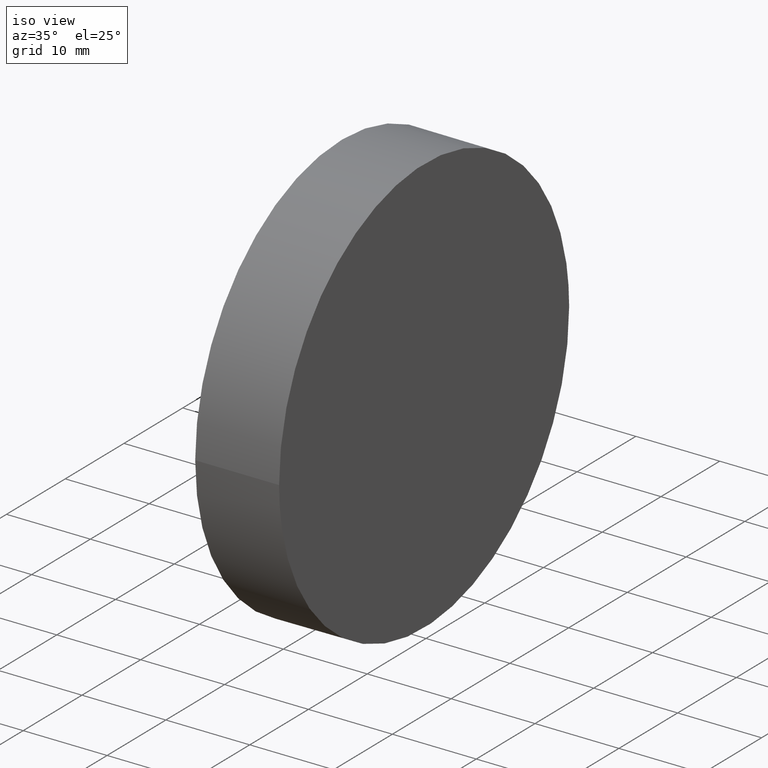
[diagram: clean part render]
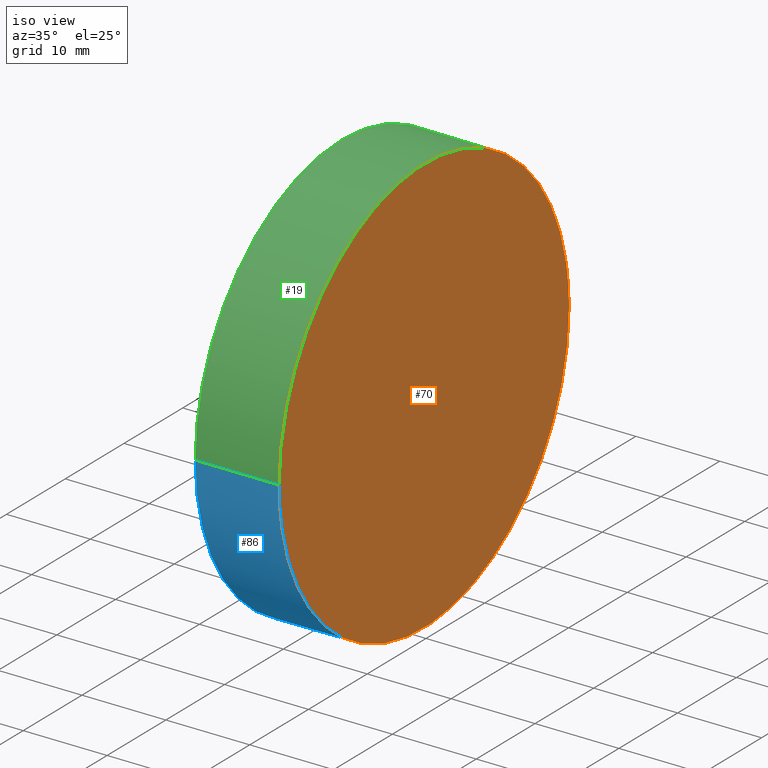
[diagram: same view with three faces highlighted in distinct colors, each labeled with its STEP entity id]
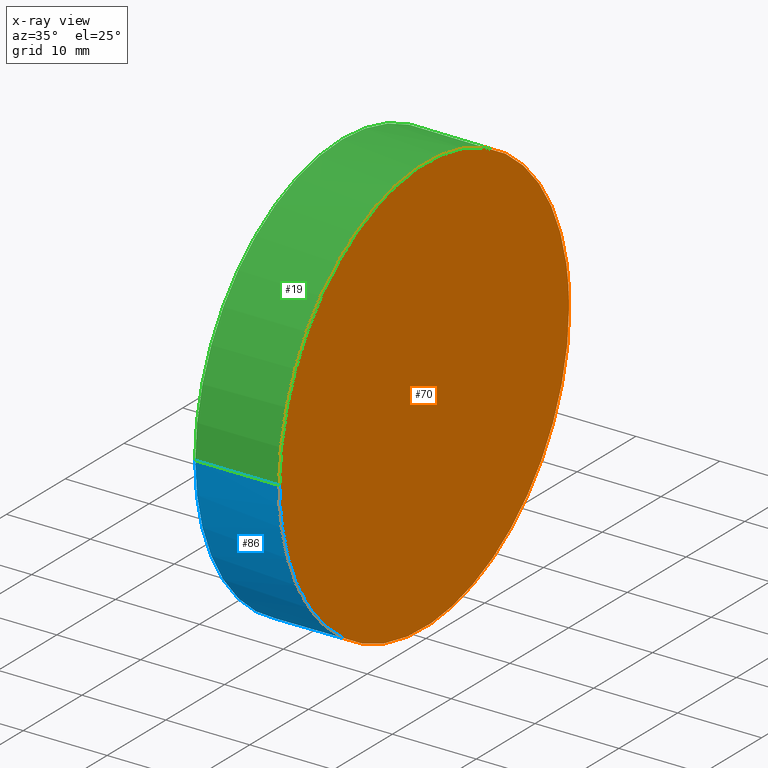
[diagram: x-ray of the same camera — body ghosted, the three highlighted faces saturated]
A machine part, iso view with three faces highlighted in distinct colors.
The next image is the same camera in x-ray (body ghosted, the three faces saturated) — at least one of them is partly hidden behind the body in this view.
Their STEP definitions:

[orange] entity #70 — the highlighted planar face has unit normal (-1, -0.0087, 0).
#4 = ORIENTED_EDGE ( 'NONE', *, *, #97, .F. ) ;
#17 = CARTESIAN_POINT ( 'NONE',  ( 10.00000000000000500, -25.00000000000000000, 25.00000000000000000 ) ) ;
#40 = CARTESIAN_POINT ( 'NONE',  ( 9.563656610462413000, 25.00000000000000000, 25.00000000000000400 ) ) ;
#46 = CARTESIAN_POINT ( 'NONE',  ( 10.00000000000000500, -25.00000000000000000, 25.00000000000000000 ) ) ;
#51 =( BOUNDED_CURVE ( )  B_SPLINE_CURVE ( 3, ( #46, #57, #122, #40 ),
 .UNSPECIFIED., .F., .T. ) 
 B_SPLINE_CURVE_WITH_KNOTS ( ( 4, 4 ),
 ( 3.141592653589793100, 6.283185307179586200 ),
 .UNSPECIFIED. ) 
 CURVE ( )  GEOMETRIC_REPRESENTATION_ITEM ( )  RATIONAL_B_SPLINE_CURVE ( ( 1.000000000000000000, 0.3333333333333333700, 0.3333333333333333700, 1.000000000000000000 ) ) 
 REPRESENTATION_ITEM ( '' )  );
#57 = CARTESIAN_POINT ( 'NONE',  ( 10.00000000000000500, -25.00000000000001100, 75.00000000000000000 ) ) ;
#69 = PLANE ( 'NONE',  #106 ) ;
#70 = ADVANCED_FACE ( 'NONE', ( #71 ), #69, .F. ) ;
#71 = FACE_OUTER_BOUND ( 'NONE', #118, .T. ) ;
#84 = CARTESIAN_POINT ( 'NONE',  ( 10.00000000000000500, -25.00000000000000400, 50.00000000000000000 ) ) ;
#87 = CARTESIAN_POINT ( 'NONE',  ( 9.563656610462413000, 25.00000000000000000, 25.00000000000000400 ) ) ;
#91 = CARTESIAN_POINT ( 'NONE',  ( 10.00000000000000500, -25.00000000000000000, -25.00000000000001100 ) ) ;
#94 = CARTESIAN_POINT ( 'NONE',  ( 9.563656610462413000, 25.00000000000000000, 25.00000000000000400 ) ) ;
#96 = DIRECTION ( 'NONE',  ( 0.008726535498366981900, -0.9999619230641713100, 0.0000000000000000000 ) ) ;
#97 = EDGE_CURVE ( 'NONE', #109, #137, #102, .T. ) ;
#102 =( BOUNDED_CURVE ( )  B_SPLINE_CURVE ( 3, ( #87, #139, #91, #111 ),
 .UNSPECIFIED., .F., .T. ) 
 B_SPLINE_CURVE_WITH_KNOTS ( ( 4, 4 ),
 ( 0.0000000000000000000, 3.141592653589793100 ),
 .UNSPECIFIED. ) 
 CURVE ( )  GEOMETRIC_REPRESENTATION_ITEM ( )  RATIONAL_B_SPLINE_CURVE ( ( 1.000000000000000000, 0.3333333333333333700, 0.3333333333333333700, 1.000000000000000000 ) ) 
 REPRESENTATION_ITEM ( '' )  );
#106 = AXIS2_PLACEMENT_3D ( 'NONE', #84, #124, #96 ) ;
#109 = VERTEX_POINT ( 'NONE', #94 ) ;
#111 = CARTESIAN_POINT ( 'NONE',  ( 10.00000000000000500, -25.00000000000000000, 25.00000000000000000 ) ) ;
#118 = EDGE_LOOP ( 'NONE', ( #123, #4 ) ) ;
#122 = CARTESIAN_POINT ( 'NONE',  ( 9.563656610462413000, 25.00000000000000000, 75.00000000000000000 ) ) ;
#123 = ORIENTED_EDGE ( 'NONE', *, *, #126, .F. ) ;
#124 = DIRECTION ( 'NONE',  ( -0.9999619230641714200, -0.008726535498366983600, 0.0000000000000000000 ) ) ;
#126 = EDGE_CURVE ( 'NONE', #137, #109, #51, .T. ) ;
#137 = VERTEX_POINT ( 'NONE', #17 ) ;
#139 = CARTESIAN_POINT ( 'NONE',  ( 9.563656610462413000, 25.00000000000000000, -25.00000000000001100 ) ) ;

[blue] entity #86 — the highlighted cylindrical surface (partial cylindrical patch) has radius 25 mm, axis along (-1, -0, -0).
#1 = VECTOR ( 'NONE', #53, 1000.000000000000000 ) ;
#2 = ORIENTED_EDGE ( 'NONE', *, *, #117, .T. ) ;
#6 = LINE ( 'NONE', #134, #1 ) ;
#17 = CARTESIAN_POINT ( 'NONE',  ( 10.00000000000000500, -25.00000000000000000, 25.00000000000000000 ) ) ;
#25 = DIRECTION ( 'NONE',  ( 1.224646799147353500E-016, -1.000000000000000000, 0.0000000000000000000 ) ) ;
#27 = CYLINDRICAL_SURFACE ( 'NONE', #55, 25.00000000000000000 ) ;
#34 = EDGE_CURVE ( 'NONE', #120, #125, #88, .T. ) ;
#36 = ORIENTED_EDGE ( 'NONE', *, *, #41, .F. ) ;
#37 = VECTOR ( 'NONE', #78, 1000.000000000000000 ) ;
#41 = EDGE_CURVE ( 'NONE', #109, #120, #6, .T. ) ;
#48 = DIRECTION ( 'NONE',  ( -1.000000000000000000, -1.224646799147353500E-016, 2.465190328815661900E-032 ) ) ;
#53 = DIRECTION ( 'NONE',  ( -1.000000000000000000, -1.224646799147353200E-016, -0.0000000000000000000 ) ) ;
#55 = AXIS2_PLACEMENT_3D ( 'NONE', #90, #74, #80 ) ;
#61 = LINE ( 'NONE', #129, #37 ) ;
#67 = CARTESIAN_POINT ( 'NONE',  ( -3.061616997868383800E-015, 25.00000000000000000, 25.00000000000000400 ) ) ;
#74 = DIRECTION ( 'NONE',  ( -1.000000000000000000, -1.224646799147353200E-016, -0.0000000000000000000 ) ) ;
#75 = CARTESIAN_POINT ( 'NONE',  ( 0.0000000000000000000, 0.0000000000000000000, 25.00000000000000000 ) ) ;
#76 = FACE_OUTER_BOUND ( 'NONE', #140, .T. ) ;
#78 = DIRECTION ( 'NONE',  ( -1.000000000000000000, -1.224646799147353200E-016, -0.0000000000000000000 ) ) ;
#80 = DIRECTION ( 'NONE',  ( 1.387778780781445700E-016, -1.000000000000000000, 0.0000000000000000000 ) ) ;
#81 = ORIENTED_EDGE ( 'NONE', *, *, #34, .F. ) ;
#82 = AXIS2_PLACEMENT_3D ( 'NONE', #75, #48, #25 ) ;
#83 = ORIENTED_EDGE ( 'NONE', *, *, #97, .T. ) ;
#86 = ADVANCED_FACE ( 'NONE', ( #76 ), #27, .T. ) ;
#87 = CARTESIAN_POINT ( 'NONE',  ( 9.563656610462413000, 25.00000000000000000, 25.00000000000000400 ) ) ;
#88 = CIRCLE ( 'NONE', #82, 25.00000000000000000 ) ;
#90 = CARTESIAN_POINT ( 'NONE',  ( 10.00000000000000000, 1.224646799147353300E-015, 25.00000000000000000 ) ) ;
#91 = CARTESIAN_POINT ( 'NONE',  ( 10.00000000000000500, -25.00000000000000000, -25.00000000000001100 ) ) ;
#94 = CARTESIAN_POINT ( 'NONE',  ( 9.563656610462413000, 25.00000000000000000, 25.00000000000000400 ) ) ;
#97 = EDGE_CURVE ( 'NONE', #109, #137, #102, .T. ) ;
#102 =( BOUNDED_CURVE ( )  B_SPLINE_CURVE ( 3, ( #87, #139, #91, #111 ),
 .UNSPECIFIED., .F., .T. ) 
 B_SPLINE_CURVE_WITH_KNOTS ( ( 4, 4 ),
 ( 0.0000000000000000000, 3.141592653589793100 ),
 .UNSPECIFIED. ) 
 CURVE ( )  GEOMETRIC_REPRESENTATION_ITEM ( )  RATIONAL_B_SPLINE_CURVE ( ( 1.000000000000000000, 0.3333333333333333700, 0.3333333333333333700, 1.000000000000000000 ) ) 
 REPRESENTATION_ITEM ( '' )  );
#109 = VERTEX_POINT ( 'NONE', #94 ) ;
#111 = CARTESIAN_POINT ( 'NONE',  ( 10.00000000000000500, -25.00000000000000000, 25.00000000000000000 ) ) ;
#117 = EDGE_CURVE ( 'NONE', #137, #125, #61, .T. ) ;
#120 = VERTEX_POINT ( 'NONE', #67 ) ;
#125 = VERTEX_POINT ( 'NONE', #127 ) ;
#127 = CARTESIAN_POINT ( 'NONE',  ( 3.061616997868383800E-015, -25.00000000000000000, 25.00000000000000000 ) ) ;
#129 = CARTESIAN_POINT ( 'NONE',  ( 10.00000000000000400, -25.00000000000000000, 25.00000000000000000 ) ) ;
#134 = CARTESIAN_POINT ( 'NONE',  ( 9.999999999999996400, 25.00000000000000000, 25.00000000000000400 ) ) ;
#137 = VERTEX_POINT ( 'NONE', #17 ) ;
#139 = CARTESIAN_POINT ( 'NONE',  ( 9.563656610462413000, 25.00000000000000000, -25.00000000000001100 ) ) ;
#140 = EDGE_LOOP ( 'NONE', ( #36, #83, #2, #81 ) ) ;

[green] entity #19 — the highlighted cylindrical surface (partial cylindrical patch) has radius 25 mm, axis along (-1, -0, -0).
#1 = VECTOR ( 'NONE', #53, 1000.000000000000000 ) ;
#5 = DIRECTION ( 'NONE',  ( -1.000000000000000000, -1.224646799147353200E-016, -0.0000000000000000000 ) ) ;
#6 = LINE ( 'NONE', #134, #1 ) ;
#7 = ORIENTED_EDGE ( 'NONE', *, *, #41, .T. ) ;
#17 = CARTESIAN_POINT ( 'NONE',  ( 10.00000000000000500, -25.00000000000000000, 25.00000000000000000 ) ) ;
#19 = ADVANCED_FACE ( 'NONE', ( #112 ), #24, .T. ) ;
#24 = CYLINDRICAL_SURFACE ( 'NONE', #44, 25.00000000000000000 ) ;
#28 = ORIENTED_EDGE ( 'NONE', *, *, #115, .F. ) ;
#31 = CIRCLE ( 'NONE', #119, 25.00000000000000000 ) ;
#37 = VECTOR ( 'NONE', #78, 1000.000000000000000 ) ;
#40 = CARTESIAN_POINT ( 'NONE',  ( 9.563656610462413000, 25.00000000000000000, 25.00000000000000400 ) ) ;
#41 = EDGE_CURVE ( 'NONE', #109, #120, #6, .T. ) ;
#42 = CARTESIAN_POINT ( 'NONE',  ( 0.0000000000000000000, 0.0000000000000000000, 25.00000000000000000 ) ) ;
#44 = AXIS2_PLACEMENT_3D ( 'NONE', #99, #5, #49 ) ;
#46 = CARTESIAN_POINT ( 'NONE',  ( 10.00000000000000500, -25.00000000000000000, 25.00000000000000000 ) ) ;
#49 = DIRECTION ( 'NONE',  ( 1.387778780781445700E-016, -1.000000000000000000, 0.0000000000000000000 ) ) ;
#51 =( BOUNDED_CURVE ( )  B_SPLINE_CURVE ( 3, ( #46, #57, #122, #40 ),
 .UNSPECIFIED., .F., .T. ) 
 B_SPLINE_CURVE_WITH_KNOTS ( ( 4, 4 ),
 ( 3.141592653589793100, 6.283185307179586200 ),
 .UNSPECIFIED. ) 
 CURVE ( )  GEOMETRIC_REPRESENTATION_ITEM ( )  RATIONAL_B_SPLINE_CURVE ( ( 1.000000000000000000, 0.3333333333333333700, 0.3333333333333333700, 1.000000000000000000 ) ) 
 REPRESENTATION_ITEM ( '' )  );
#53 = DIRECTION ( 'NONE',  ( -1.000000000000000000, -1.224646799147353200E-016, -0.0000000000000000000 ) ) ;
#54 = ORIENTED_EDGE ( 'NONE', *, *, #126, .T. ) ;
#57 = CARTESIAN_POINT ( 'NONE',  ( 10.00000000000000500, -25.00000000000001100, 75.00000000000000000 ) ) ;
#61 = LINE ( 'NONE', #129, #37 ) ;
#66 = DIRECTION ( 'NONE',  ( 1.224646799147353500E-016, -1.000000000000000000, 0.0000000000000000000 ) ) ;
#67 = CARTESIAN_POINT ( 'NONE',  ( -3.061616997868383800E-015, 25.00000000000000000, 25.00000000000000400 ) ) ;
#78 = DIRECTION ( 'NONE',  ( -1.000000000000000000, -1.224646799147353200E-016, -0.0000000000000000000 ) ) ;
#94 = CARTESIAN_POINT ( 'NONE',  ( 9.563656610462413000, 25.00000000000000000, 25.00000000000000400 ) ) ;
#99 = CARTESIAN_POINT ( 'NONE',  ( 10.00000000000000000, 1.224646799147353300E-015, 25.00000000000000000 ) ) ;
#105 = EDGE_LOOP ( 'NONE', ( #54, #7, #28, #121 ) ) ;
#109 = VERTEX_POINT ( 'NONE', #94 ) ;
#112 = FACE_OUTER_BOUND ( 'NONE', #105, .T. ) ;
#115 = EDGE_CURVE ( 'NONE', #125, #120, #31, .T. ) ;
#117 = EDGE_CURVE ( 'NONE', #137, #125, #61, .T. ) ;
#119 = AXIS2_PLACEMENT_3D ( 'NONE', #42, #133, #66 ) ;
#120 = VERTEX_POINT ( 'NONE', #67 ) ;
#121 = ORIENTED_EDGE ( 'NONE', *, *, #117, .F. ) ;
#122 = CARTESIAN_POINT ( 'NONE',  ( 9.563656610462413000, 25.00000000000000000, 75.00000000000000000 ) ) ;
#125 = VERTEX_POINT ( 'NONE', #127 ) ;
#126 = EDGE_CURVE ( 'NONE', #137, #109, #51, .T. ) ;
#127 = CARTESIAN_POINT ( 'NONE',  ( 3.061616997868383800E-015, -25.00000000000000000, 25.00000000000000000 ) ) ;
#129 = CARTESIAN_POINT ( 'NONE',  ( 10.00000000000000400, -25.00000000000000000, 25.00000000000000000 ) ) ;
#133 = DIRECTION ( 'NONE',  ( -1.000000000000000000, -1.224646799147353500E-016, 2.465190328815661900E-032 ) ) ;
#134 = CARTESIAN_POINT ( 'NONE',  ( 9.999999999999996400, 25.00000000000000000, 25.00000000000000400 ) ) ;
#137 = VERTEX_POINT ( 'NONE', #17 ) ;